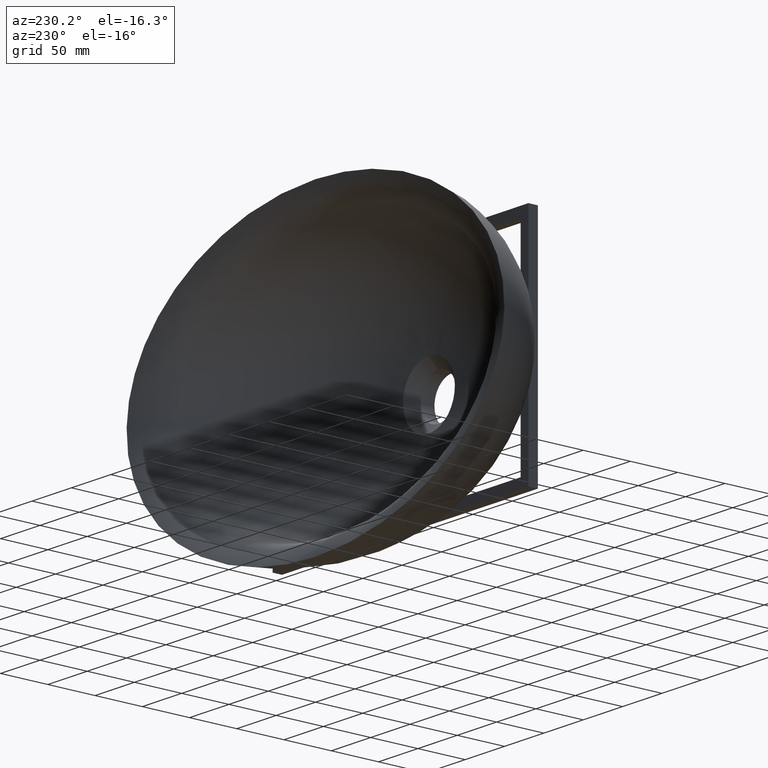
[diagram: clean part render]
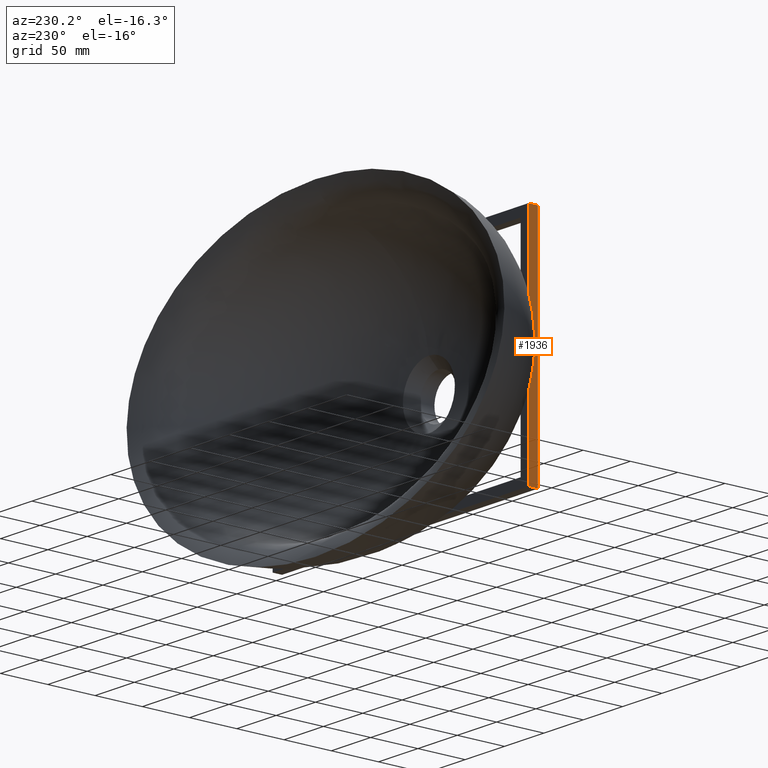
[diagram: same view with one face highlighted and labeled with its STEP entity id]
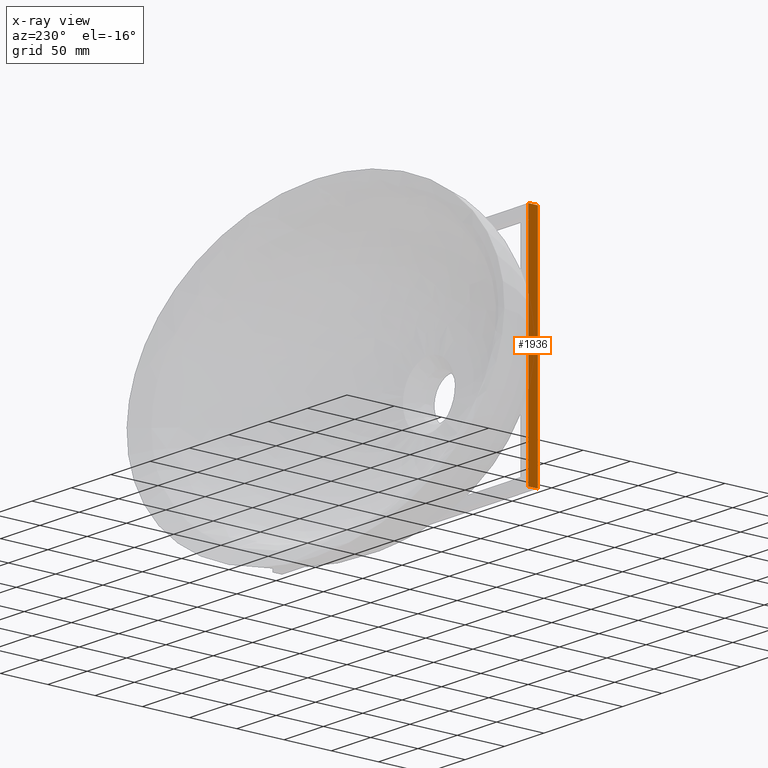
[diagram: x-ray of the same camera — body ghosted, the highlighted face saturated]
A machine part, auxiliary view. The second image highlights one B-rep face of the part: STEP entity #1936.
The next image is the same camera in x-ray: the body ghosted, the highlighted face saturated — about 0% of this face is hidden behind the body in this view.
In plain terms, the highlighted planar face has unit normal (-1, 0, 0).
Its self-contained STEP definition (entity closure, byte-faithful):
#171 = AXIS2_PLACEMENT_3D ( 'NONE', #1157, #1224, #1140 ) ;
#269 = LINE ( 'NONE', #687, #3033 ) ;
#445 = LINE ( 'NONE', #1089, #2860 ) ;
#449 = EDGE_CURVE ( 'NONE', #4011, #1359, #1619, .T. ) ;
#687 = CARTESIAN_POINT ( 'NONE',  ( -162.5000000000000000, -99.99999999999998600, -120.0000000000000000 ) ) ;
#740 = LINE ( 'NONE', #1456, #3367 ) ;
#976 = VERTEX_POINT ( 'NONE', #4289 ) ;
#1089 = CARTESIAN_POINT ( 'NONE',  ( -162.5000000000000000, -90.00000000000000000, 120.0000000000000000 ) ) ;
#1140 = DIRECTION ( 'NONE',  ( 0.0000000000000000000, 0.0000000000000000000, 1.000000000000000000 ) ) ;
#1145 = PLANE ( 'NONE',  #171 ) ;
#1157 = CARTESIAN_POINT ( 'NONE',  ( -162.5000000000000000, -99.99999999999998600, 120.0000000000000000 ) ) ;
#1224 = DIRECTION ( 'NONE',  ( -1.000000000000000000, 0.0000000000000000000, 0.0000000000000000000 ) ) ;
#1359 = VERTEX_POINT ( 'NONE', #2917 ) ;
#1405 = DIRECTION ( 'NONE',  ( 0.0000000000000000000, 1.000000000000000000, 0.0000000000000000000 ) ) ;
#1456 = CARTESIAN_POINT ( 'NONE',  ( -162.5000000000000000, -99.99999999999998600, 120.0000000000000000 ) ) ;
#1610 = DIRECTION ( 'NONE',  ( -0.0000000000000000000, -0.0000000000000000000, 1.000000000000000000 ) ) ;
#1619 = LINE ( 'NONE', #1626, #3288 ) ;
#1626 = CARTESIAN_POINT ( 'NONE',  ( -162.5000000000000000, -99.99999999999998600, 120.0000000000000000 ) ) ;
#1659 = EDGE_LOOP ( 'NONE', ( #3911, #4173, #1664, #4142 ) ) ;
#1664 = ORIENTED_EDGE ( 'NONE', *, *, #449, .T. ) ;
#1794 = CARTESIAN_POINT ( 'NONE',  ( -162.5000000000000000, -99.99999999999998600, -120.0000000000000000 ) ) ;
#1936 = ADVANCED_FACE ( 'NONE', ( #3307 ), #1145, .T. ) ;
#2181 = DIRECTION ( 'NONE',  ( 0.0000000000000000000, 1.000000000000000000, 0.0000000000000000000 ) ) ;
#2676 = CARTESIAN_POINT ( 'NONE',  ( -162.5000000000000000, -90.00000000000000000, -120.0000000000000000 ) ) ;
#2860 = VECTOR ( 'NONE', #3334, 1000.000000000000000 ) ;
#2917 = CARTESIAN_POINT ( 'NONE',  ( -162.5000000000000000, -99.99999999999998600, 120.0000000000000000 ) ) ;
#3033 = VECTOR ( 'NONE', #1405, 1000.000000000000000 ) ;
#3132 = EDGE_CURVE ( 'NONE', #4366, #976, #445, .T. ) ;
#3172 = EDGE_CURVE ( 'NONE', #1359, #976, #740, .T. ) ;
#3288 = VECTOR ( 'NONE', #1610, 1000.000000000000000 ) ;
#3307 = FACE_OUTER_BOUND ( 'NONE', #1659, .T. ) ;
#3334 = DIRECTION ( 'NONE',  ( -0.0000000000000000000, -0.0000000000000000000, 1.000000000000000000 ) ) ;
#3367 = VECTOR ( 'NONE', #2181, 1000.000000000000000 ) ;
#3911 = ORIENTED_EDGE ( 'NONE', *, *, #3132, .F. ) ;
#4011 = VERTEX_POINT ( 'NONE', #1794 ) ;
#4142 = ORIENTED_EDGE ( 'NONE', *, *, #3172, .T. ) ;
#4173 = ORIENTED_EDGE ( 'NONE', *, *, #4527, .F. ) ;
#4289 = CARTESIAN_POINT ( 'NONE',  ( -162.5000000000000000, -90.00000000000000000, 120.0000000000000000 ) ) ;
#4366 = VERTEX_POINT ( 'NONE', #2676 ) ;
#4527 = EDGE_CURVE ( 'NONE', #4011, #4366, #269, .T. ) ;